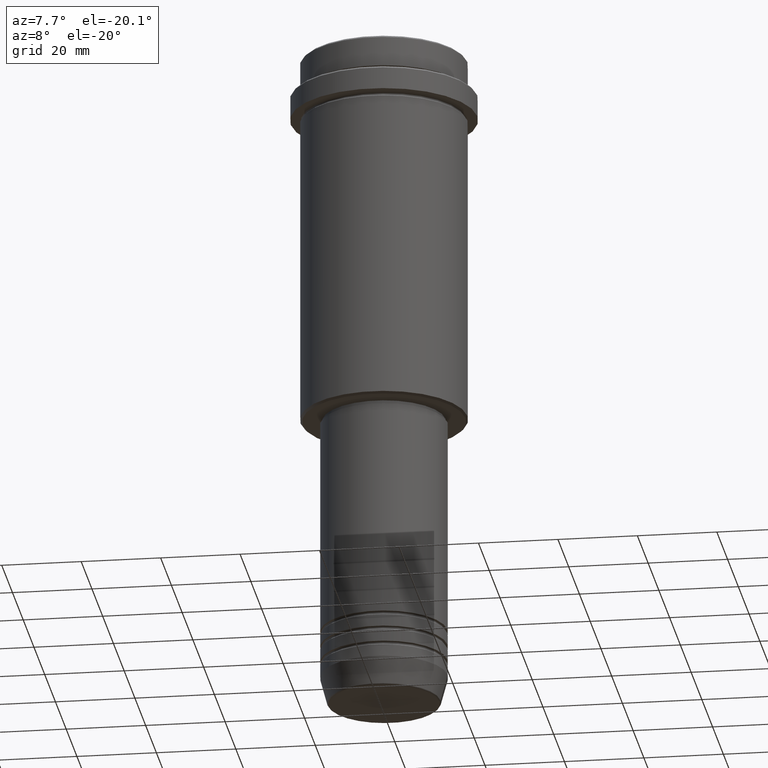
[diagram: clean part render]
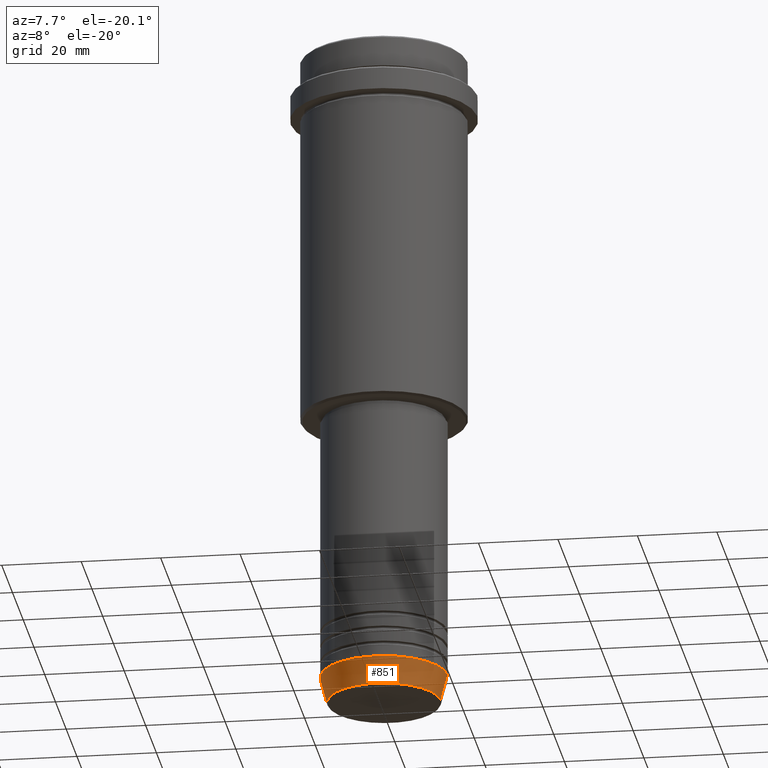
[diagram: same view with one face highlighted and labeled with its STEP entity id]
A machine part, auxiliary view. The second image highlights one B-rep face of the part: STEP entity #851.
In plain terms, the highlighted conical surface has half-angle 15 deg.
Its self-contained STEP definition (entity closure, byte-faithful):
#38 = CARTESIAN_POINT ( 'NONE',  ( 0.000000000000000000, 0.000000000000000000, -169.6294095225512706 ) ) ;
#39 = FACE_OUTER_BOUND ( 'NONE', #1187, .T. ) ;
#71 = EDGE_CURVE ( 'NONE', #133, #670, #1160, .T. ) ;
#90 = CARTESIAN_POINT ( 'NONE',  ( 14.22365507213719660, 0.000000000000000000, -169.6294095225512706 ) ) ;
#133 = VERTEX_POINT ( 'NONE', #90 ) ;
#192 = AXIS2_PLACEMENT_3D ( 'NONE', #1067, #877, #1088 ) ;
#254 = CARTESIAN_POINT ( 'NONE',  ( -16.00000000000000000, 1.959434878635765131E-15, -163.0000000000000000 ) ) ;
#291 = VECTOR ( 'NONE', #911, 1000.000000000000000 ) ;
#338 = CARTESIAN_POINT ( 'NONE',  ( 0.000000000000000000, 0.000000000000000000, -163.0000000000000000 ) ) ;
#380 = CARTESIAN_POINT ( 'NONE',  ( 16.00000000000000000, 0.000000000000000000, -163.0000000000000000 ) ) ;
#388 = EDGE_CURVE ( 'NONE', #432, #1089, #482, .T. ) ;
#432 = VERTEX_POINT ( 'NONE', #574 ) ;
#482 = LINE ( 'NONE', #698, #291 ) ;
#489 = DIRECTION ( 'NONE',  ( 1.000000000000000000, 0.000000000000000000, 0.000000000000000000 ) ) ;
#515 = VECTOR ( 'NONE', #936, 1000.000000000000000 ) ;
#574 = CARTESIAN_POINT ( 'NONE',  ( -14.22365507213719660, 1.850665122131324126E-15, -169.6294095225512706 ) ) ;
#589 = DIRECTION ( 'NONE',  ( -0.000000000000000000, -0.000000000000000000, 1.000000000000000000 ) ) ;
#656 = AXIS2_PLACEMENT_3D ( 'NONE', #338, #1010, #804 ) ;
#670 = VERTEX_POINT ( 'NONE', #1289 ) ;
#698 = CARTESIAN_POINT ( 'NONE',  ( -16.00000000000000000, 1.959434878635765131E-15, -163.0000000000000000 ) ) ;
#720 = EDGE_CURVE ( 'NONE', #1089, #670, #1253, .T. ) ;
#804 = DIRECTION ( 'NONE',  ( 1.000000000000000000, 0.000000000000000000, 0.000000000000000000 ) ) ;
#851 = ADVANCED_FACE ( 'NONE', ( #39 ), #889, .T. ) ;
#877 = DIRECTION ( 'NONE',  ( -0.000000000000000000, -0.000000000000000000, 1.000000000000000000 ) ) ;
#889 = CONICAL_SURFACE ( 'NONE', #656, 16.00000000000000000, 0.2617993877991500740 ) ;
#911 = DIRECTION ( 'NONE',  ( -0.2588190451025213501, 3.169619151431772337E-17, 0.9659258262890680902 ) ) ;
#913 = ORIENTED_EDGE ( 'NONE', *, *, #71, .T. ) ;
#936 = DIRECTION ( 'NONE',  ( 0.2588190451025213501, 0.000000000000000000, 0.9659258262890680902 ) ) ;
#976 = CIRCLE ( 'NONE', #1063, 14.22365507213719660 ) ;
#1010 = DIRECTION ( 'NONE',  ( -0.000000000000000000, -0.000000000000000000, 1.000000000000000000 ) ) ;
#1063 = AXIS2_PLACEMENT_3D ( 'NONE', #38, #589, #489 ) ;
#1067 = CARTESIAN_POINT ( 'NONE',  ( 0.000000000000000000, 0.000000000000000000, -163.0000000000000000 ) ) ;
#1088 = DIRECTION ( 'NONE',  ( 1.000000000000000000, 0.000000000000000000, 0.000000000000000000 ) ) ;
#1089 = VERTEX_POINT ( 'NONE', #254 ) ;
#1107 = EDGE_CURVE ( 'NONE', #432, #133, #976, .T. ) ;
#1128 = ORIENTED_EDGE ( 'NONE', *, *, #388, .F. ) ;
#1160 = LINE ( 'NONE', #380, #515 ) ;
#1187 = EDGE_LOOP ( 'NONE', ( #1128, #1339, #913, #1288 ) ) ;
#1253 = CIRCLE ( 'NONE', #192, 16.00000000000000000 ) ;
#1288 = ORIENTED_EDGE ( 'NONE', *, *, #720, .F. ) ;
#1289 = CARTESIAN_POINT ( 'NONE',  ( 16.00000000000000000, 0.000000000000000000, -163.0000000000000000 ) ) ;
#1339 = ORIENTED_EDGE ( 'NONE', *, *, #1107, .T. ) ;